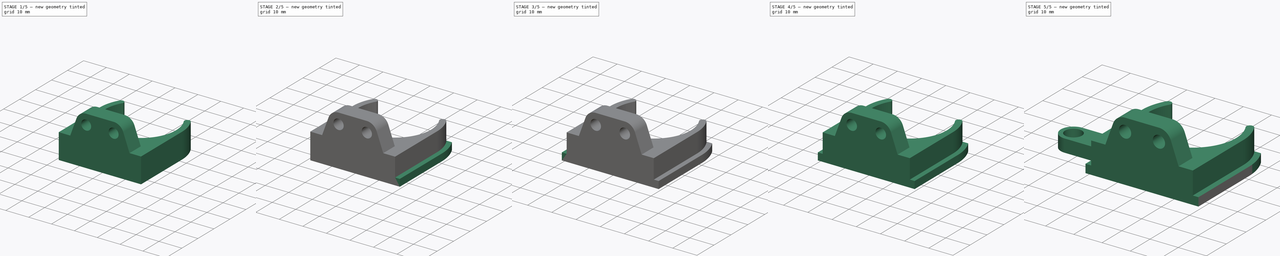
[diagram: build sequence overview — one tinted view per stage of 5, left to right]
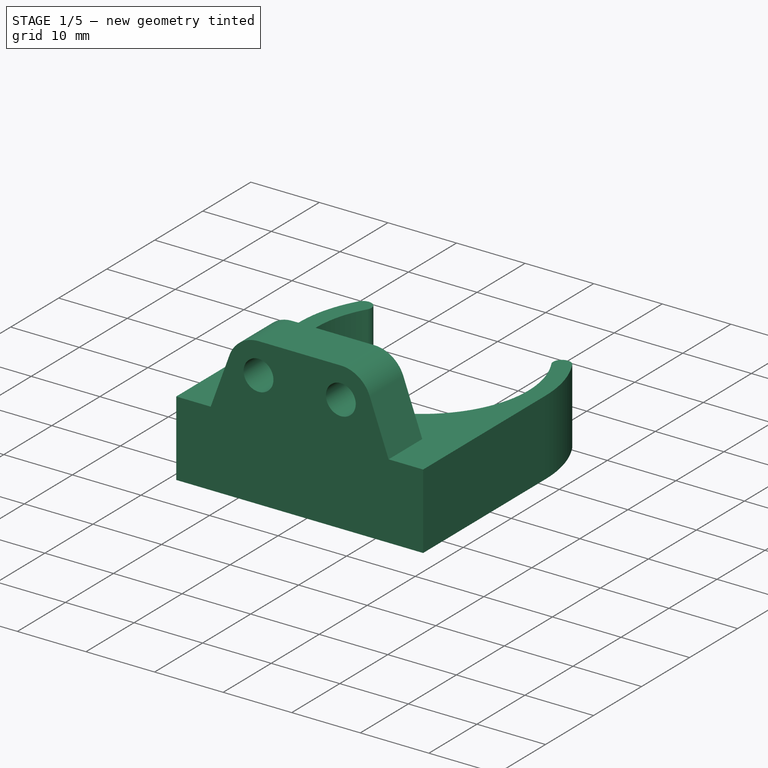
[diagram: stage 1 of 5 — iso view after this stage's code; geometry added in this stage tinted green]
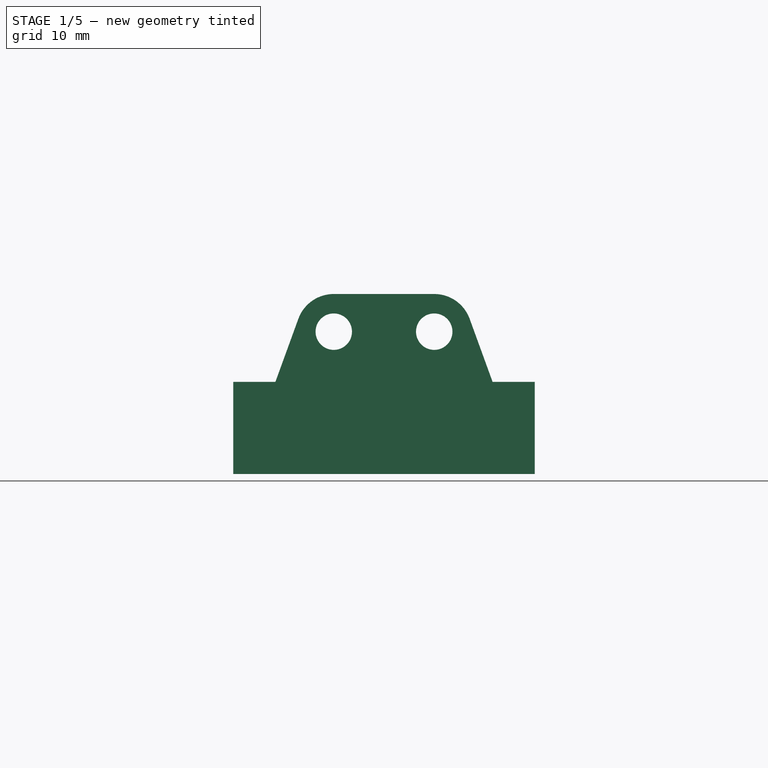
[diagram: stage 1 of 5 — front view after this stage's code; geometry added in this stage tinted green]
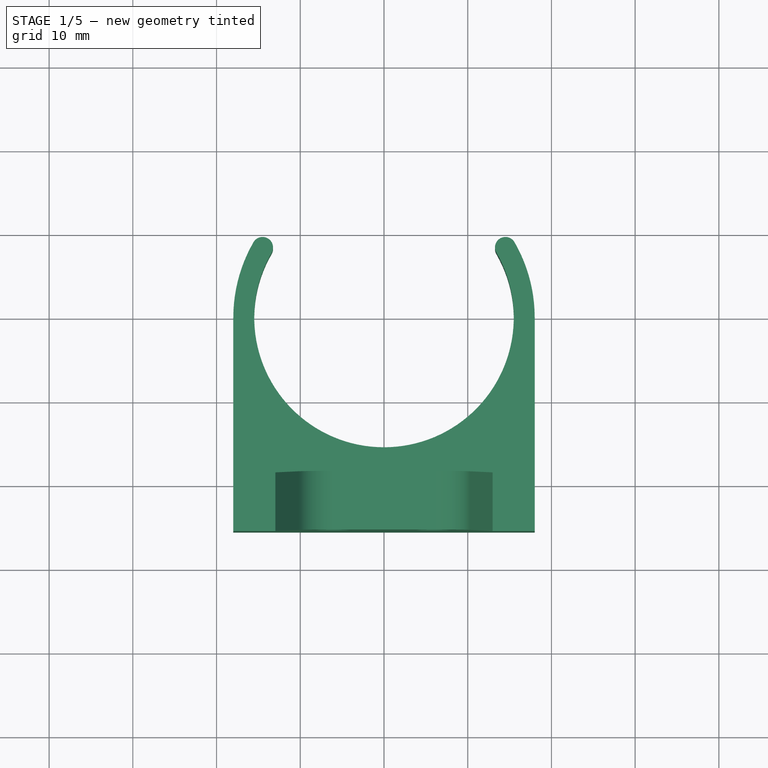
[diagram: stage 1 of 5 — top view after this stage's code; geometry added in this stage tinted green]
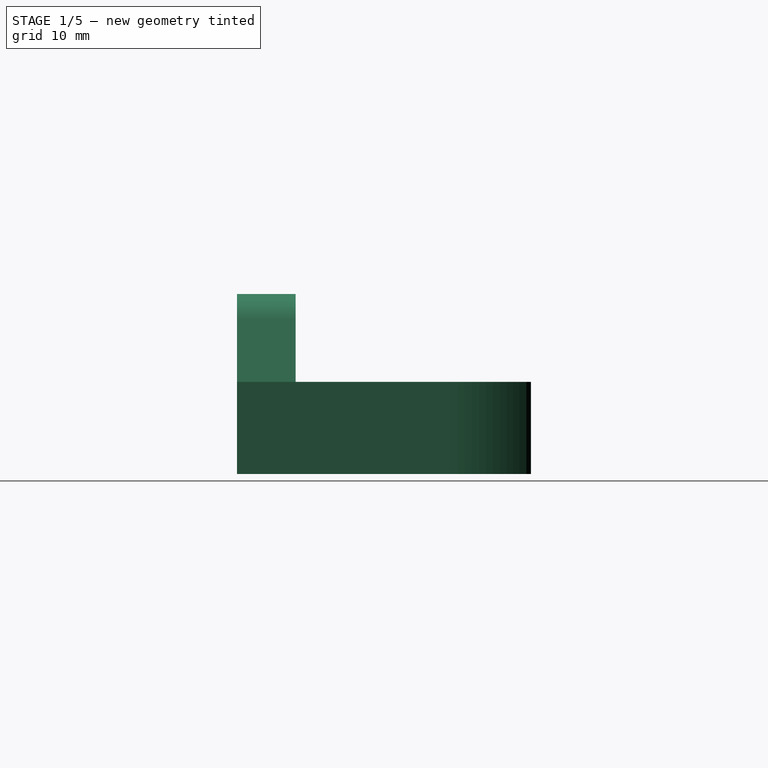
[diagram: stage 1 of 5 — right view after this stage's code; geometry added in this stage tinted green]
FCSTD DOCUMENT  (FreeCAD 1.1R42863 (Git))
Label: PassiveClaw
License: All rights reserved
LicenseURL: https://en.wikipedia.org/wiki/All_rights_reserved
objects: Sketcher::SketchObject×10, PartDesign::Pad×10, PartDesign::Mirrored×3, Measure::MeasureDistanceDetached×2, App::Point×1, PartDesign::Pocket×1, App::DocumentObjectGroup×1, PartDesign::Body×1, Part::Mirroring×1
note: 61 computed .brp shape members not serialized (recipe doc carries the construction recipe); baked Part::Feature solids carry a one-line shape summary decoded from their .brp
EXTERNAL_REF file=../Variables.FCStd obj=Spreadsheet

FEATURE [App::Point] Origin001
  Role = Origin
FEATURE [Sketcher::SketchObject] Sketch
  ArcFitTolerance = 1e-06
  AttachmentSupport = -> [XY_Plane]
  ExternalTypes = [0]
  FullyConstrained = true
  MakeInternals = false
  MapMode = 5
  sketch-geometry (10):
    g0: ArcOfCircle CenterX=14.5059 CenterY=8.375 CenterZ=0 NormalX=0 NormalY=0 NormalZ=1 AngleXU=0 Radius=1.25 StartAngle=0.523599 EndAngle=3.66519
    g1: ArcOfCircle CenterX=-14.5059 CenterY=8.375 CenterZ=0 NormalX=0 NormalY=0 NormalZ=1 AngleXU=0 Radius=1.25 StartAngle=5.75959 EndAngle=8.90118
    g2: ArcOfCircle CenterX=-3.66e-14 CenterY=1.31e-13 CenterZ=0 NormalX=0 NormalY=0 NormalZ=1 AngleXU=0 Radius=15.5 StartAngle=2.61799 EndAngle=6.80678
    g3: LineSegment [constr] StartX=-3.66e-14 StartY=1.31e-13 StartZ=0 EndX=14.5059 EndY=8.375 EndZ=0
    g4: LineSegment StartX=18 StartY=-4.48e-14 StartZ=0 EndX=18 EndY=-25.5 EndZ=0
    g5: LineSegment StartX=18 StartY=-25.5 StartZ=0 EndX=-18 EndY=-25.5 EndZ=0
    g6: LineSegment StartX=-18 StartY=-25.5 StartZ=0 EndX=-18 EndY=-3.6e-15 EndZ=0
    g7: ArcOfCircle CenterX=-3.66e-14 CenterY=1.31e-13 CenterZ=0 NormalX=0 NormalY=0 NormalZ=1 AngleXU=0 Radius=18 StartAngle=-9.8e-15 EndAngle=0.523599
    g8: ArcOfCircle CenterX=-3.66e-14 CenterY=1.31e-13 CenterZ=0 NormalX=0 NormalY=0 NormalZ=1 AngleXU=0 Radius=18 StartAngle=2.61799 EndAngle=3.14159
    g9: GeomPoint X=18.5 Y=0 Z=0
  constraints (27):
    c: Horizontal(g7,g1)
    c: Tangent(g0,g7) = -1.5708
    c: Radius(g0) = 1.25
    c: Coincident(g3,g0)
    c: Angle(g-1,g3) = 0.523599
    c: PointOnObject(g4,g-1)
    c: Coincident(g5,g4)
    c: Horizontal(g5)
    c: Coincident(g6,g5)
    c: Vertical(g6)
    c: PointOnObject(g6,g-1)
    c: Tangent(g4,g7) = 1.5708
    c: Coincident(g8,g6)
    c: Equal(g1,g0)
    c: Tangent(g8,g1) = -1.5708
    c: Coincident(g2,g-1)
    c: Coincident(g8,g7)
    c: Coincident(g3,g2)
    c: Coincident(g7,g2)
    c: Radius(g2) = 15.5
    c: Tangent(g2,g1) = 1.5708
    c: Tangent(g2,g0) = 1.5708
    c: Distance(g2,g5) = 10
    c: PointOnObject(g9,g-1)
    c: Distance(g9,g2) = 3
    c: DistanceX(g-1,g9) = 18.5  'magnetPocketDist'
    c: Distance(g4,g9) = 0.5  'magnetHolderPadDist'
FEATURE [PartDesign::Pad] Pad
  Direction = (0,0,1)
  Length = 11
  Length2 = 10
  Profile = -> Sketch
  ReferenceAxis = -> Sketch [N_Axis]
  Refine = true
  Suppressed = false
  Type = 0
  expr: Length = Variables#Spreadsheet.ClawHeight
FEATURE [Sketcher::SketchObject] Sketch001
  ArcFitTolerance = 1e-06
  AttachmentSupport = -> [Pad]
  ExternalGeometry = -> [Pad]
  ExternalTypes = [0]
  FullyConstrained = true
  MakeInternals = false
  MapMode = 5
  Placement = pos=(0,-25.5,0) rot=(1,0,0;1.5708rad)
  expr: Constraints[0] = Variables#Spreadsheet.PassiveClawMountY
  expr: Constraints[5] = Variables#Spreadsheet.PassiveClawMountX
  expr: Constraints[7] = Variables#Spreadsheet.M4ThroughBoreDiam
  sketch-geometry (10):
    g0: LineSegment [constr] StartX=-8.5286e-12 StartY=11 StartZ=0 EndX=0 EndY=17 EndZ=0
    g1: LineSegment [constr] StartX=-6 StartY=17 StartZ=0 EndX=6 EndY=17 EndZ=0
    g2: Circle CenterX=-6 CenterY=17 CenterZ=0 NormalX=0 NormalY=0 NormalZ=1 AngleXU=0 Radius=2.175
    g3: Circle CenterX=6 CenterY=17 CenterZ=0 NormalX=0 NormalY=0 NormalZ=1 AngleXU=0 Radius=2.175
    g4: ArcOfCircle CenterX=-6 CenterY=17 CenterZ=0 NormalX=0 NormalY=0 NormalZ=1 AngleXU=0 Radius=4.5 StartAngle=1.5708 EndAngle=2.79253
    g5: ArcOfCircle CenterX=6 CenterY=17 CenterZ=0 NormalX=0 NormalY=0 NormalZ=1 AngleXU=0 Radius=4.5 StartAngle=0.349066 EndAngle=1.5708
    g6: LineSegment StartX=-6 StartY=21.5 StartZ=0 EndX=6 EndY=21.5 EndZ=0
    g7: LineSegment StartX=-10.2286 StartY=18.5391 StartZ=0 EndX=-12.9726 EndY=11 EndZ=0
    g8: LineSegment StartX=10.2286 StartY=18.5391 StartZ=0 EndX=12.9726 EndY=11 EndZ=0
    g9: LineSegment StartX=12.9726 StartY=11 StartZ=0 EndX=-12.9726 EndY=11 EndZ=0
  constraints (24):
    c: Distance(g0) = 6
    c: Symmetric(g-3,g-3,g0)
    c: PointOnObject(g0,g-2)
    c: Horizontal(g1)
    c: Symmetric(g1,g1,g0)
    c: DistanceX(g1,g1) = 12
    c: Coincident(g2,g1)
    c: Diameter(g2) = 4.35
    c: Coincident(g3,g1)
    c: Equal(g3,g2)
    c: Coincident(g4,g1)
    c: Coincident(g5,g1)
    c: PointOnObject(g7,g-3)
    c: PointOnObject(g8,g-3)
    c: Coincident(g9,g8)
    c: Coincident(g9,g7)
    c: Equal(g8,g7)
    c: Angle(g7,g-3) = 1.91986
    c: Diameter(g4) = 9
    c: Tangent(g7,g4) = -1.5708
    c: Tangent(g6,g4) = 1.5708
    c: Tangent(g6,g5) = 1.5708
    c: Equal(g5,g4)
    c: Tangent(g8,g5) = 1.5708
FEATURE [PartDesign::Pad] Pad001
  BaseFeature = -> Pad
  Direction = (0,-1,2e-16)
  Length = 7
  Length2 = 10
  Profile = -> Sketch001
  ReferenceAxis = -> Sketch001 [N_Axis]
  Refine = true
  Reversed = true
  Suppressed = false
  Type = 0
FEATURE [Sketcher::SketchObject] Sketch002
  ArcFitTolerance = 1e-06
  AttachmentSupport = -> [Pad001]
  ExternalGeometry = -> [Pad001]
  ExternalTypes = [0]
  FullyConstrained = true
  MakeInternals = false
  MapMode = 5
  Placement = pos=(0,0,0) rot=(1,0,0;3.14159rad)
  sketch-geometry (5):
    g0: LineSegment StartX=-15.4418 StartY=1.34181 StartZ=0 EndX=-15.1 EndY=1 EndZ=0
    g1: LineSegment StartX=-15.1 StartY=1 StartZ=0 EndX=-15.1 EndY=-1 EndZ=0
    g2: LineSegment StartX=-15.1 StartY=-1 StartZ=0 EndX=-15.4418 EndY=-1.34181 EndZ=0
    g3: GeomPoint X=-15.1 Y=1.99e-14 Z=0
    g4: ArcOfCircle CenterX=4.491e-13 CenterY=-1.11643e-11 CenterZ=0 NormalX=0 NormalY=0 NormalZ=1 AngleXU=0 Radius=15.5 StartAngle=3.05492 EndAngle=3.22827
  constraints (14):
    c: PointOnObject(g0,g-3)
    c: Coincident(g1,g0)
    c: Vertical(g1)
    c: Coincident(g2,g1)
    c: PointOnObject(g2,g-3)
    c: Angle(g2,g-2) = 0.785398
    c: Equal(g0,g2)
    c: Symmetric(g1,g1,g3)
    c: PointOnObject(g3,g-1)
    c: Distance(g-3,g1) = -0.4
    c: DistanceY(g1,g1) = 2
    c: Coincident(g4,g0)
    c: Coincident(g4,g2)
    c: Equal(g4,g-3)
FEATURE [PartDesign::Pad] Pad002
  BaseFeature = -> Pad001
  Direction = (0,0,-1)
  Length = 2
  Length2 = 10
  Profile = -> Sketch002
  ReferenceAxis = -> Sketch002 [N_Axis]
  Refine = true
  Reversed = true
  Suppressed = true
  Type = 0
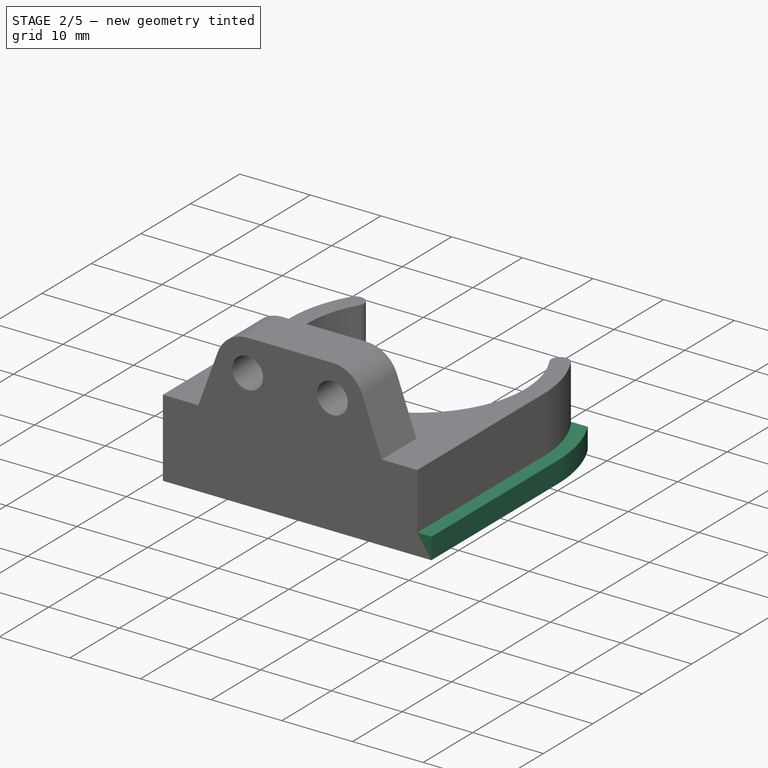
[diagram: stage 2 of 5 — iso view after this stage's code; geometry added in this stage tinted green]
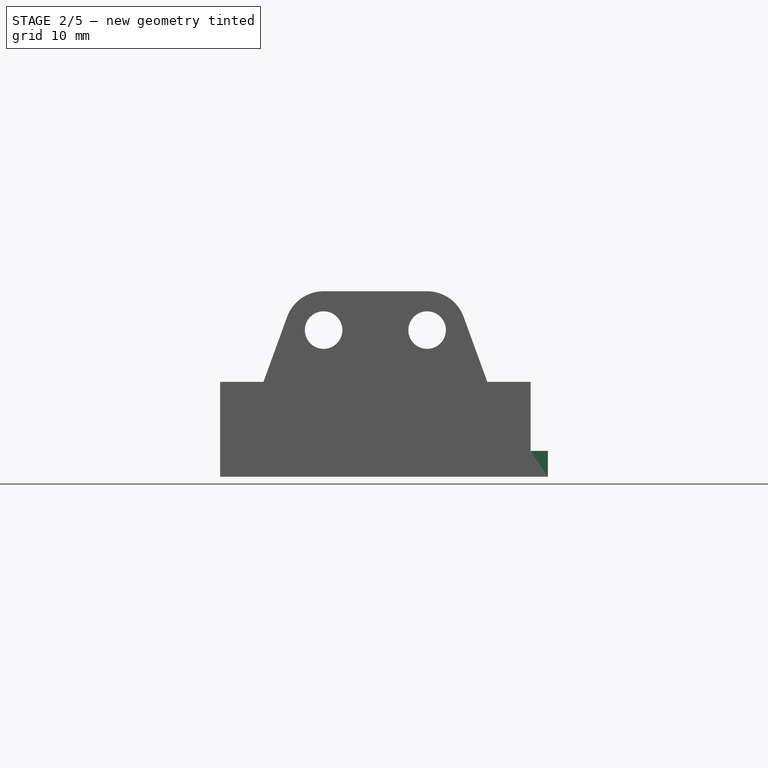
[diagram: stage 2 of 5 — front view after this stage's code; geometry added in this stage tinted green]
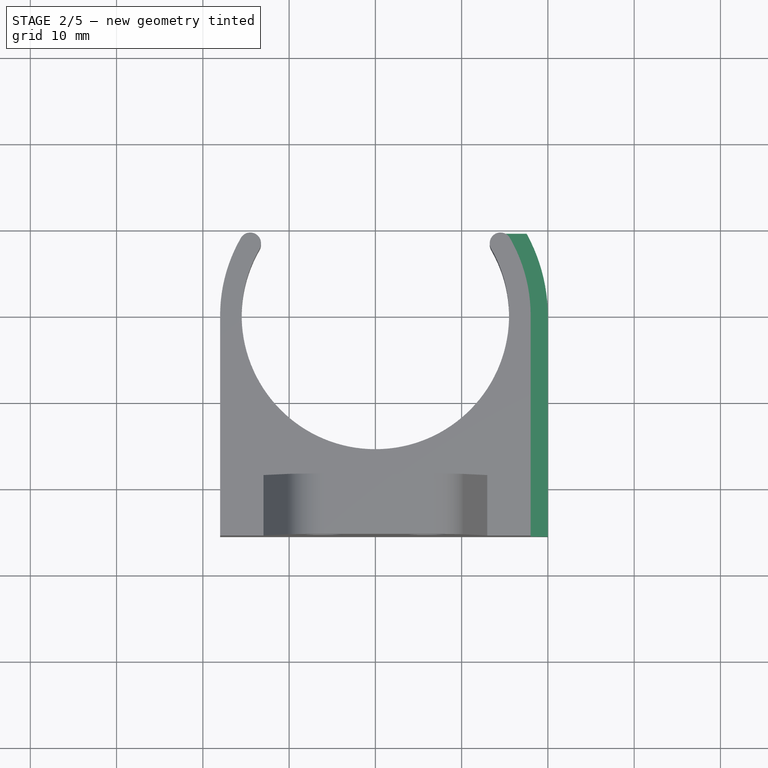
[diagram: stage 2 of 5 — top view after this stage's code; geometry added in this stage tinted green]
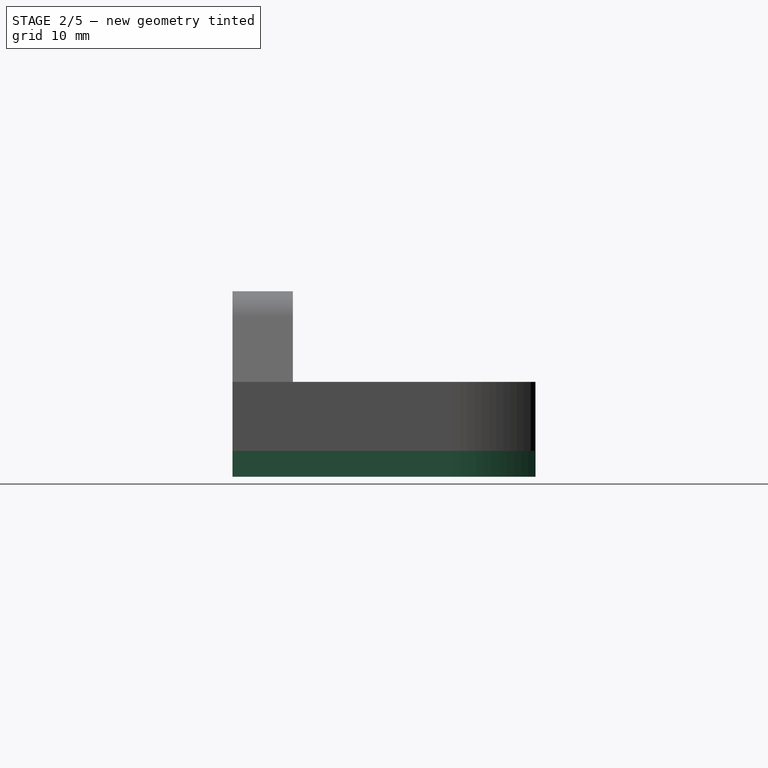
[diagram: stage 2 of 5 — right view after this stage's code; geometry added in this stage tinted green]
FEATURE [PartDesign::Mirrored] Mirrored
  BaseFeature = -> Pad002
  MirrorPlane = -> Sketch002 [V_Axis]
  Originals = -> [Pad002]
  Refine = true
  Suppressed = true
  TransformMode = 0
FEATURE [Sketcher::SketchObject] Sketch003
  ArcFitTolerance = 1e-06
  AttachmentSupport = -> [Mirrored]
  ExternalGeometry = -> [Mirrored]
  ExternalTypes = [0,0,0]
  FullyConstrained = true
  MakeInternals = false
  MapMode = 5
  Placement = pos=(0,0,11) rot=(0,0,1;0rad)
  sketch-geometry (5):
    g0: ArcOfCircle CenterX=0 CenterY=0 CenterZ=0 NormalX=0 NormalY=0 NormalZ=1 AngleXU=0 Radius=14 StartAngle=3.04442 EndAngle=6.38035
    g1: LineSegment StartX=13.934 StartY=1.35821 StartZ=0 EndX=13.2618 EndY=8.25373 EndZ=0
    g2: LineSegment StartX=-13.934 StartY=1.35821 StartZ=0 EndX=-13.2618 EndY=8.25373 EndZ=0
    g3: ArcOfCircle CenterX=-14.5059 CenterY=8.375 CenterZ=0 NormalX=0 NormalY=0 NormalZ=1 AngleXU=0 Radius=1.25 StartAngle=5.75959 EndAngle=6.18602
    g4: ArcOfCircle CenterX=14.5059 CenterY=8.375 CenterZ=0 NormalX=0 NormalY=0 NormalZ=1 AngleXU=0 Radius=1.25 StartAngle=3.23876 EndAngle=3.66519
  constraints (12):
    c: Coincident(g-1,g0)
    c: Tangent(g1,g-5) = 1.5708
    c: Tangent(g2,g-4) = -1.5708
    c: Tangent(g2,g0) = 1.5708
    c: Tangent(g1,g0) = -1.5708
    c: Distance(g0,g-3) = 1.5
    c: Coincident(g3,g-4)
    c: Coincident(g3,g2)
    c: Equal(g3,g-4)
    c: Coincident(g4,g1)
    c: Coincident(g4,g-5)
    c: Equal(g4,g-5)
FEATURE [PartDesign::Pad] Pad003
  BaseFeature = -> Mirrored
  Direction = (0,0,1)
  Length = 1.5
  Length2 = 10
  Profile = -> Sketch003
  ReferenceAxis = -> Sketch003 [N_Axis]
  Refine = true
  Reversed = true
  Suppressed = true
  Type = 0
FEATURE [Sketcher::SketchObject] Sketch004
  ArcFitTolerance = 1e-06
  AttachmentSupport = -> [YZ_Plane]
  ExternalTypes = [0]
  FullyConstrained = true
  MakeInternals = false
  MapMode = 5
  Placement = pos=(0,0,0) rot=(0.57735,0.57735,0.57735;2.0944rad)
  expr: .AttachmentOffset.Base.z = 0
  sketch-geometry (1):
    g0: Circle CenterX=0 CenterY=3.28 CenterZ=0 NormalX=0 NormalY=0 NormalZ=1 AngleXU=0 Radius=3
  constraints (3):
    c: Diameter(g0) = 6
    c: PointOnObject(g0,g-2)
    c: Distance(g0,g-1) = 0.28
FEATURE [Sketcher::SketchObject] Sketch008
  ArcFitTolerance = 1e-06
  ExternalGeometry = -> [Sketch]
  ExternalTypes = [0]
  FullyConstrained = true
  MakeInternals = false
  MapMode = 5
  Placement = pos=(0,0,0) rot=(1,0,0;3.14159rad)
  sketch-geometry (5):
    g0: LineSegment StartX=18 StartY=17.5 StartZ=0 EndX=18 EndY=8.5 EndZ=0
    g1: GeomPoint X=18 Y=13 Z=0
    g2: LineSegment StartX=18 StartY=8.5 StartZ=0 EndX=33 EndY=8.5 EndZ=0
    g3: LineSegment StartX=18 StartY=17.5 StartZ=0 EndX=33 EndY=17.5 EndZ=0
    g4: ArcOfCircle CenterX=33 CenterY=13 CenterZ=0 NormalX=0 NormalY=0 NormalZ=1 AngleXU=0 Radius=4.5 StartAngle=4.71239 EndAngle=7.85398
  constraints (14):
    c: Distance(g0) = 9
    c: PointOnObject(g0,g-3)
    c: PointOnObject(g0,g-3)
    c: Symmetric(g0,g0,g1)
    c: DistanceY(g-1,g1) = 13
    c: Coincident(g2,g0)
    c: Horizontal(g2)
    c: Coincident(g3,g0)
    c: Horizontal(g3)
    c: Vertical(g3,g2)
    c: Coincident(g4,g3)
    c: Coincident(g4,g2)
    c: Vertical(g2,g4)
    c: DistanceX(g1,g4) = 15
FEATURE [Sketcher::SketchObject] Sketch010
  ArcFitTolerance = 1e-06
  AttachmentSupport = -> [Pad003]
  ExternalGeometry = -> [Pad003]
  ExternalTypes = [0,0,0]
  FullyConstrained = true
  MakeInternals = false
  MapMode = 5
  Placement = pos=(0,0,0) rot=(1,0,0;3.14159rad)
  sketch-geometry (5):
    g0: LineSegment StartX=14.5059 StartY=-9.625 StartZ=0 EndX=17.5317 EndY=-9.625 EndZ=0
    g1: ArcOfCircle CenterX=-4.7e-15 CenterY=-1.14e-14 CenterZ=0 NormalX=0 NormalY=0 NormalZ=1 AngleXU=0 Radius=20 StartAngle=5.78111 EndAngle=6.28319
    g2: LineSegment StartX=20 StartY=1.5e-15 StartZ=0 EndX=20 EndY=25.5 EndZ=0
    g3: LineSegment StartX=20 StartY=25.5 StartZ=0 EndX=18 EndY=25.5 EndZ=0
    g4: ArcOfCircle CenterX=14.5059 CenterY=-8.375 CenterZ=0 NormalX=0 NormalY=0 NormalZ=1 AngleXU=0 Radius=1.25 StartAngle=4.71239 EndAngle=5.75959
  constraints (13):
    c: Horizontal(g0)
    c: Tangent(g0,g-5) = -1.5708
    c: Coincident(g1,g0)
    c: PointOnObject(g1,g-1)
    c: Coincident(g1,g-1)
    c: Coincident(g2,g1)
    c: Vertical(g2)
    c: Coincident(g3,g2)
    c: Coincident(g3,g-3)
    c: Horizontal(g3)
    c: DistanceX(g3,g3) = 2
    c: Coincident(g4,g0)
    c: Tangent(g4,g-5) = -1.5708
FEATURE [PartDesign::Pad] Pad009
  BaseFeature = -> Pad003
  Direction = (0,0,-1)
  Length = 3
  Length2 = 10
  Profile = -> Sketch010
  ReferenceAxis = -> Sketch010 [N_Axis]
  Refine = true
  Reversed = true
  Suppressed = false
  Type = 0
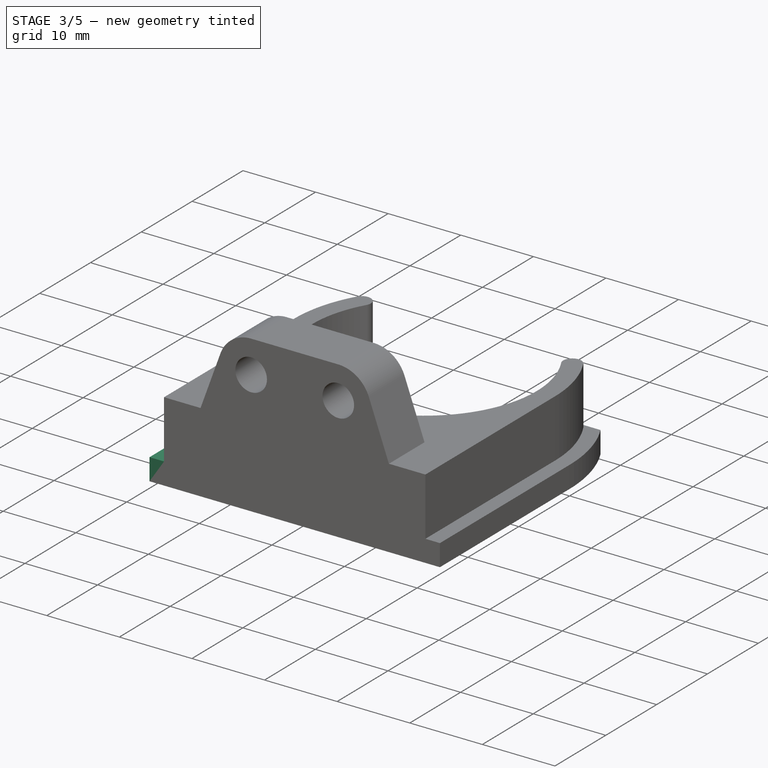
[diagram: stage 3 of 5 — iso view after this stage's code; geometry added in this stage tinted green]
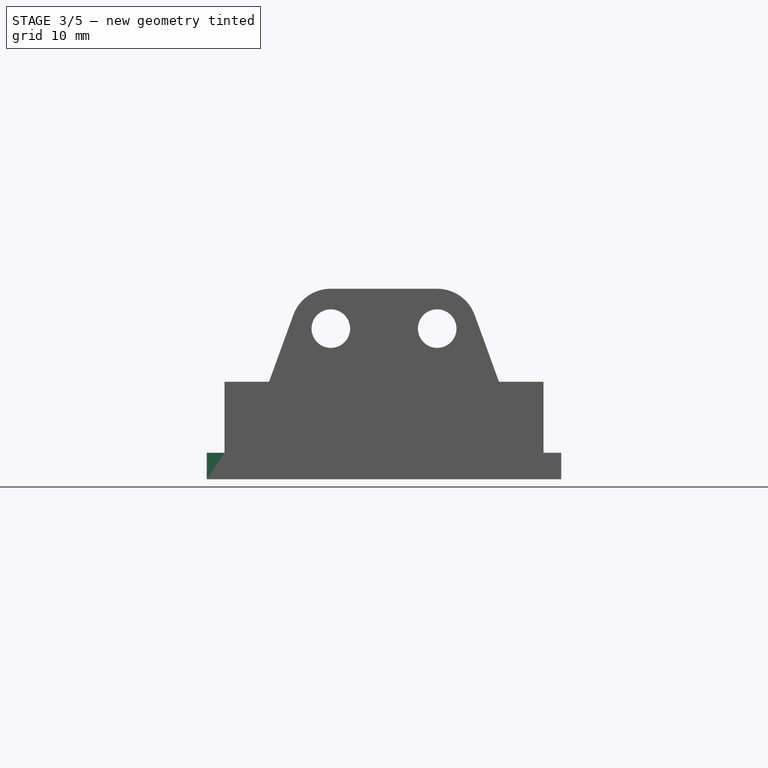
[diagram: stage 3 of 5 — front view after this stage's code; geometry added in this stage tinted green]
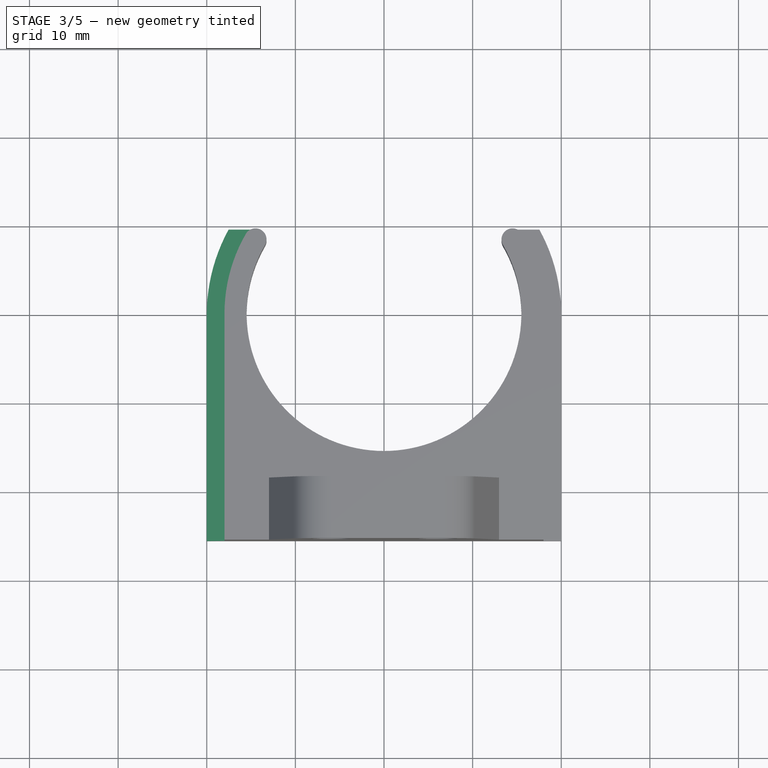
[diagram: stage 3 of 5 — top view after this stage's code; geometry added in this stage tinted green]
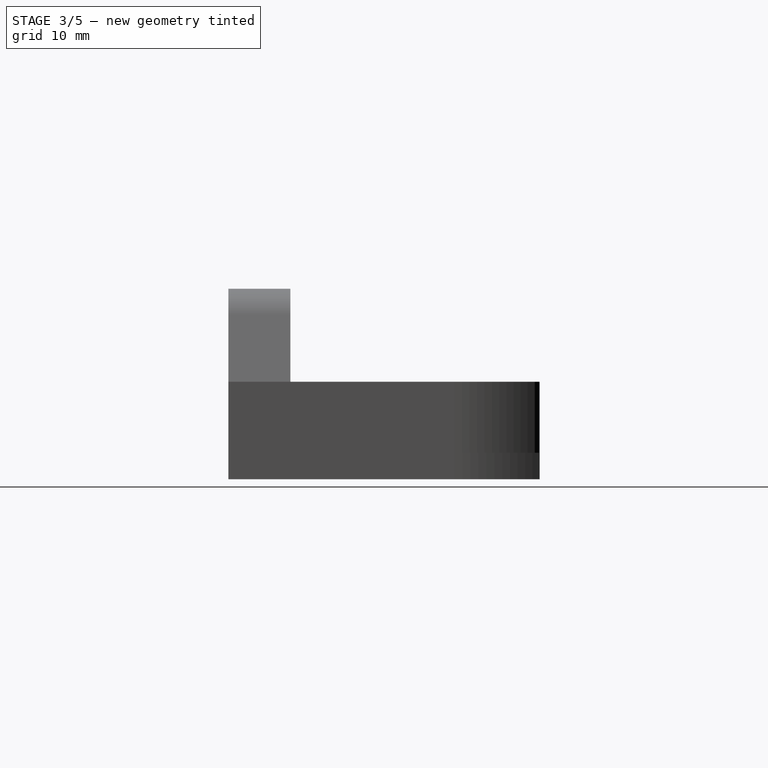
[diagram: stage 3 of 5 — right view after this stage's code; geometry added in this stage tinted green]
FEATURE [PartDesign::Mirrored] Mirrored002
  BaseFeature = -> Pad009
  MirrorPlane = -> Sketch010 [V_Axis]
  Originals = -> [Pad009]
  Refine = true
  Suppressed = false
  TransformMode = 0
FEATURE [PartDesign::Pocket] Pocket
  BaseFeature = -> Mirrored002
  Direction = (-1,0,0)
  Length = 18.5
  Length2 = 5
  Profile = -> Sketch004
  ReferenceAxis = -> Sketch004 [N_Axis]
  Refine = true
  Reversed = true
  Suppressed = true
  Type = 0
  expr: Length = Sketch.Constraints.magnetPocketDist
FEATURE [Sketcher::SketchObject] Sketch005
  ArcFitTolerance = 1e-06
  AttachmentSupport = -> [Pocket]
  ExternalTypes = [0,0,0]
  FullyConstrained = true
  MakeInternals = false
  MapMode = 5
  Placement = pos=(18,-1.6569e-11,0) rot=(0.57735,0.57735,0.57735;2.0944rad)
  sketch-geometry (5):
    g0: LineSegment StartX=-4 StartY=0 StartZ=0 EndX=4 EndY=0 EndZ=0
    g1: LineSegment StartX=4 StartY=0 StartZ=0 EndX=4 EndY=7 EndZ=0
    g2: LineSegment StartX=4 StartY=7 StartZ=0 EndX=-4 EndY=7 EndZ=0
    g3: LineSegment StartX=-4 StartY=7 StartZ=0 EndX=-4 EndY=0 EndZ=0
    g4: GeomPoint X=0 Y=7 Z=0
  constraints (13):
    c: Coincident(g0,g1)
    c: Coincident(g1,g2)
    c: Coincident(g2,g3)
    c: Coincident(g3,g0)
    c: Horizontal(g0)
    c: Horizontal(g2)
    c: Vertical(g1)
    c: Vertical(g3)
    c: PointOnObject(g0,g-1)
    c: Symmetric(g2,g2,g4)
    c: PointOnObject(g4,g-2)
    c: DistanceY(g1,g1) = 7
    c: DistanceX(g2,g2) = 8
FEATURE [PartDesign::Pad] Pad004
  BaseFeature = -> Pocket
  Direction = (1,-9.206e-13,0)
  Length = 2
  Length2 = 10
  Profile = -> Sketch005
  ReferenceAxis = -> Sketch005 [N_Axis]
  Refine = true
  Reversed = true
  Suppressed = true
  Type = 0
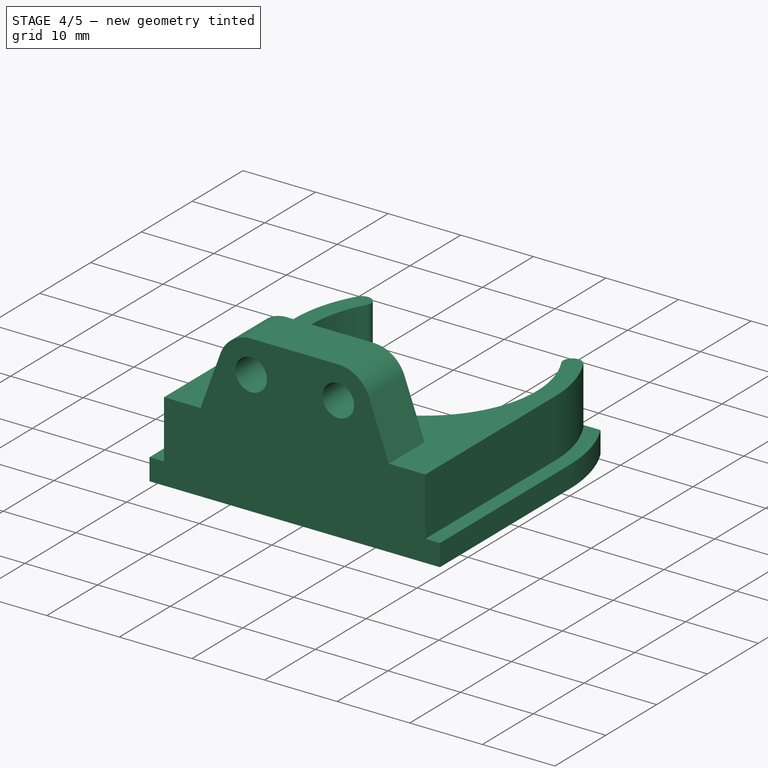
[diagram: stage 4 of 5 — iso view after this stage's code; geometry added in this stage tinted green]
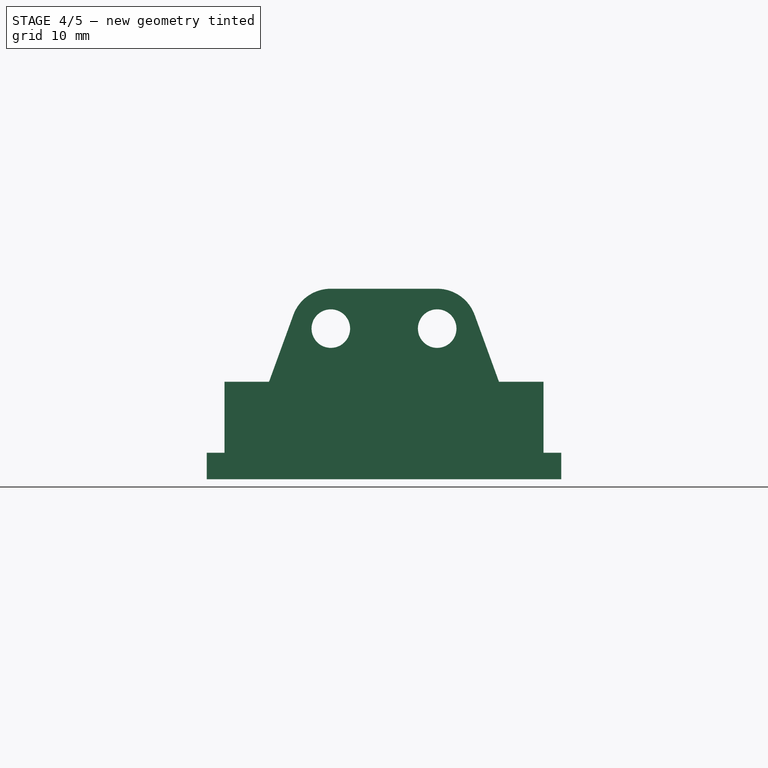
[diagram: stage 4 of 5 — front view after this stage's code; geometry added in this stage tinted green]
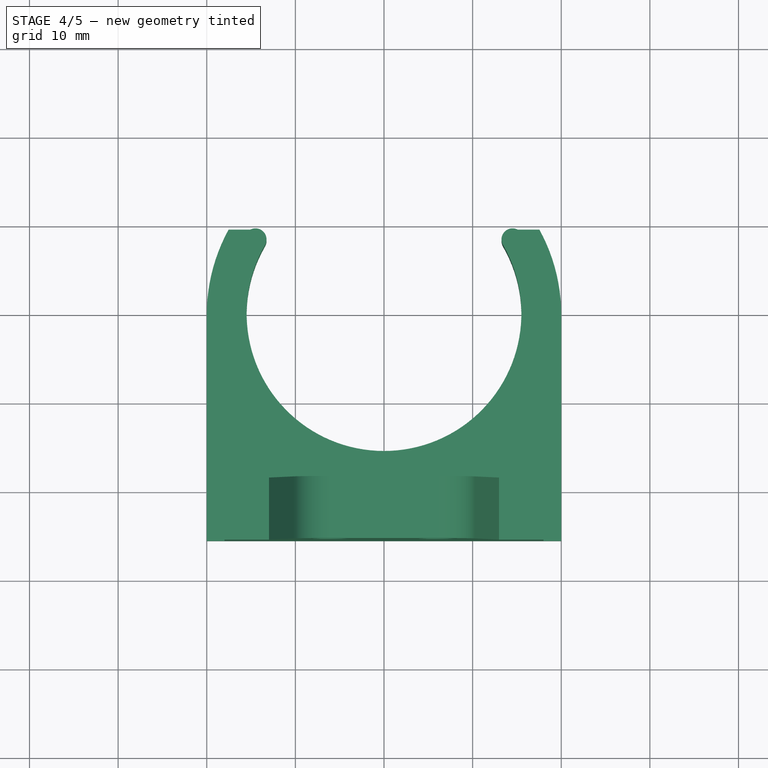
[diagram: stage 4 of 5 — top view after this stage's code; geometry added in this stage tinted green]
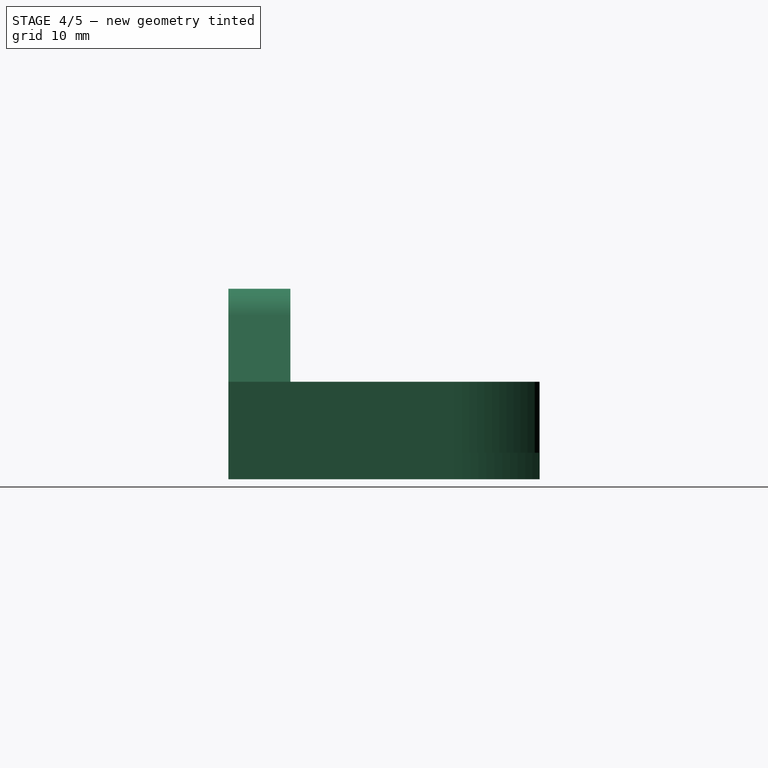
[diagram: stage 4 of 5 — right view after this stage's code; geometry added in this stage tinted green]
FEATURE [PartDesign::Pad] Pad005
  BaseFeature = -> Pad004
  Direction = (1,-9.206e-13,0)
  Length = 0.5
  Length2 = 10
  Profile = -> Sketch005
  ReferenceAxis = -> Sketch005 [N_Axis]
  Refine = true
  Suppressed = true
  Type = 0
  expr: Length = Sketch.Constraints.magnetHolderPadDist
FEATURE [Sketcher::SketchObject] Sketch006
  ArcFitTolerance = 1e-06
  AttachmentSupport = -> [Pad005]
  ExternalTypes = [0,0,0,0]
  FullyConstrained = false
  MakeInternals = false
  Placement = pos=(18.5,-1.57913e-11,7.83e-14) rot=(0.57735,0.57735,0.57735;2.0944rad)
  sketch-geometry (3):
    g0: LineSegment StartX=-4 StartY=3 StartZ=0 EndX=-4 EndY=0 EndZ=0
    g1: LineSegment StartX=-4 StartY=0 StartZ=0 EndX=4 EndY=0 EndZ=0
    g2: LineSegment StartX=4 StartY=3 StartZ=0 EndX=4 EndY=0 EndZ=0
  constraints (7):
    c: Coincident(g0,g-4)
    c: PointOnObject(g0,g-1)
    c: Vertical(g0)
    c: Coincident(g1,g0)
    c: Coincident(g2,g-5)
    c: Coincident(g2,g1)
    c: Vertical(g2)
FEATURE [PartDesign::Pad] Pad006
  BaseFeature = -> Pad005
  Direction = (1,-8.533e-13,3.9e-15)
  Length = 1
  Length2 = 10
  Profile = -> Sketch006
  ReferenceAxis = -> Sketch006 [N_Axis]
  Refine = true
  Suppressed = true
  Type = 0
FEATURE [PartDesign::Mirrored] Mirrored001
  BaseFeature = -> Pad006
  MirrorPlane = -> YZ_Plane
  Originals = -> [Pocket,Pad004,Pad005,Pad006]
  Refine = true
  Suppressed = true
  TransformMode = 0
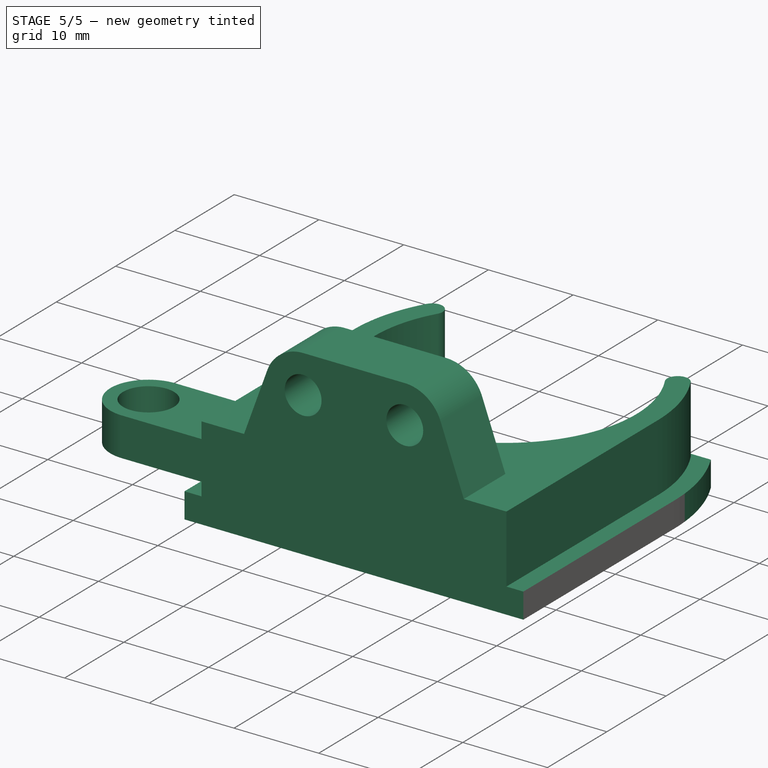
[diagram: stage 5 of 5 — iso view after this stage's code; geometry added in this stage tinted green]
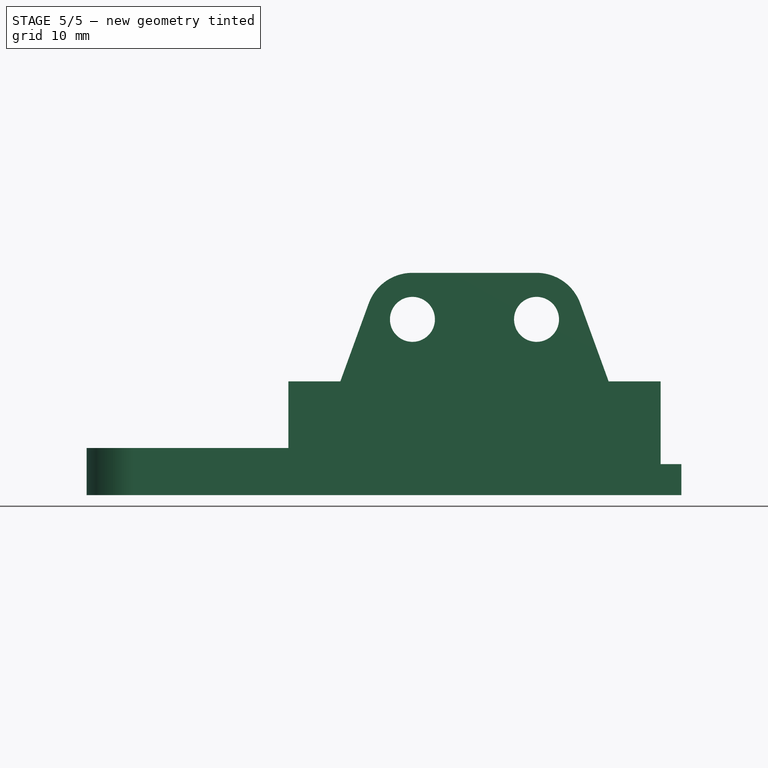
[diagram: stage 5 of 5 — front view after this stage's code; geometry added in this stage tinted green]
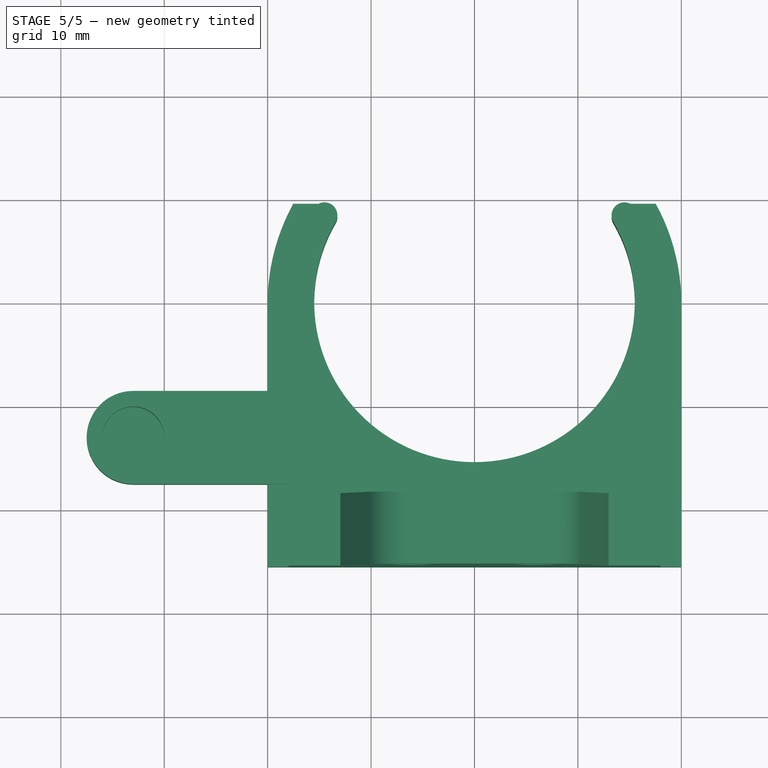
[diagram: stage 5 of 5 — top view after this stage's code; geometry added in this stage tinted green]
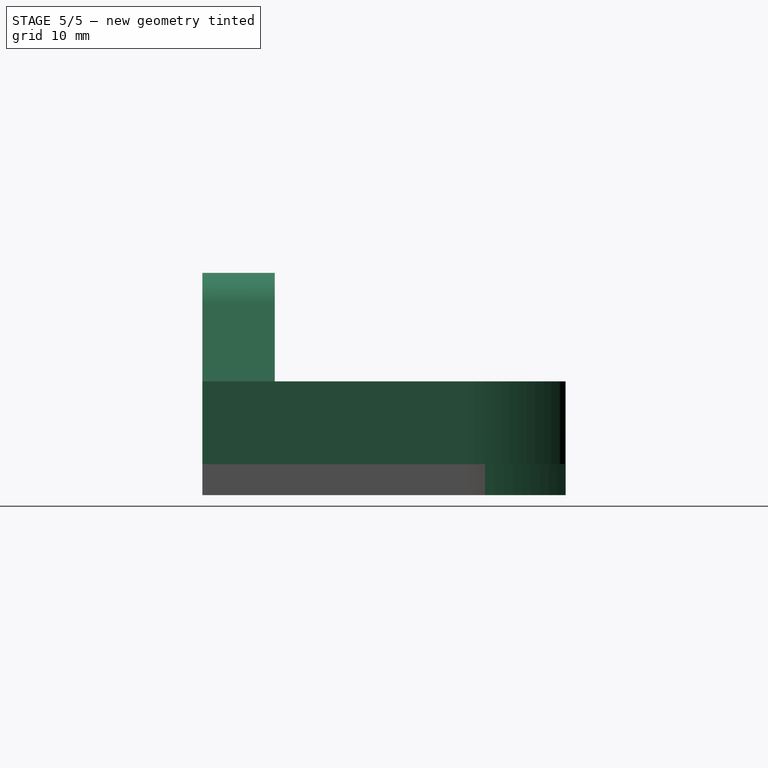
[diagram: stage 5 of 5 — right view after this stage's code; geometry added in this stage tinted green]
FEATURE [PartDesign::Pad] Pad007
  BaseFeature = -> Mirrored001
  Direction = (0,-1e-16,-1)
  Length = 0.56
  Length2 = 10
  Profile = -> Sketch008
  ReferenceAxis = -> Sketch008 [N_Axis]
  Refine = true
  Reversed = true
  Suppressed = false
  Type = 0
FEATURE [Sketcher::SketchObject] Sketch009
  ArcFitTolerance = 1e-06
  AttachmentSupport = -> [Pad007]
  ExternalGeometry = -> [Pad007]
  ExternalTypes = [0,0,0,0]
  FullyConstrained = true
  MakeInternals = false
  MapMode = 5
  Placement = pos=(0,0,0.56) rot=(0,0,1;0rad)
  sketch-geometry (4):
    g0: Circle CenterX=33 CenterY=-13 CenterZ=0 NormalX=0 NormalY=0 NormalZ=1 AngleXU=0 Radius=3
    g1: LineSegment StartX=20 StartY=-8.5 StartZ=0 EndX=18 EndY=-8.5 EndZ=0
    g2: LineSegment StartX=20 StartY=-17.5 StartZ=0 EndX=18 EndY=-17.5 EndZ=0
    g3: LineSegment StartX=18 StartY=-17.5 StartZ=0 EndX=18 EndY=-8.5 EndZ=0
  constraints (10):
    c: Diameter(g0) = 6
    c: Coincident(g0,g-5)
    c: Coincident(g1,g-3)
    c: PointOnObject(g1,g-6)
    c: Coincident(g2,g-4)
    c: PointOnObject(g2,g-6)
    c: Coincident(g3,g2)
    c: Coincident(g3,g1)
    c: Horizontal(g1)
    c: Horizontal(g2)
FEATURE [Measure::MeasureDistanceDetached] Distance_Free  label="Distance_Free: 0.00000 mm"
  Distance = 0
  DistanceX = 0
  DistanceY = 0
  DistanceZ = 0
  Position1 = (0,0,0)
  Position2 = (0,0,0)
FEATURE [Measure::MeasureDistanceDetached] Distance_Free001  label="Distance_Free001: 0.00000 mm"
  Distance = 0
  DistanceX = 0
  DistanceY = 0
  DistanceZ = 0
  Position1 = (0,0,0)
  Position2 = (0,0,0)
FEATURE [App::DocumentObjectGroup] Measurements
  Group = -> [Distance_Free,Distance_Free001]
FEATURE [PartDesign::Pad] Pad008
  BaseFeature = -> Pad007
  Direction = (0,0,1)
  Length = 4
  Length2 = 10
  Profile = -> Sketch009
  ReferenceAxis = -> Sketch009 [N_Axis]
  Refine = true
  Suppressed = false
  Type = 0
FEATURE [PartDesign::Body] Body  label="Passive Claw Right"
  AllowCompound = true
  Group = -> [Sketch,Pad,Sketch001,Pad001,Sketch002,Pad002,Mirrored,Sketch003,Pad003,Sketch004,Sketch010,Pad009,Mirrored002,Pocket,Sketch005,Pad004,Pad005,Sketch006,Pad006,Mirrored001,Sketch008,Pad007,Sketch009,Pad008]
  Origin = -> Origin
  Tip = -> Pad008
FEATURE [Part::Mirroring] Part__Mirroring  label="Passive Claw Left"
  Base = (-20,-1.5e-15,0)
  MirrorPlane = -> Pad008 [Face21]
  Normal = (-1,0,0)
  Source = -> Pad008
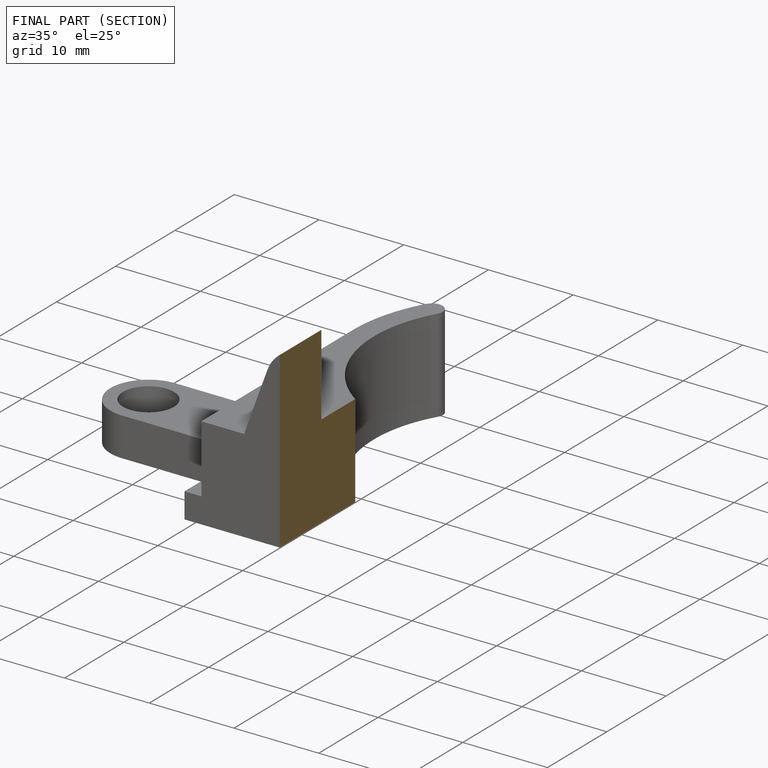
[diagram: finished part — half-section view (interior)]
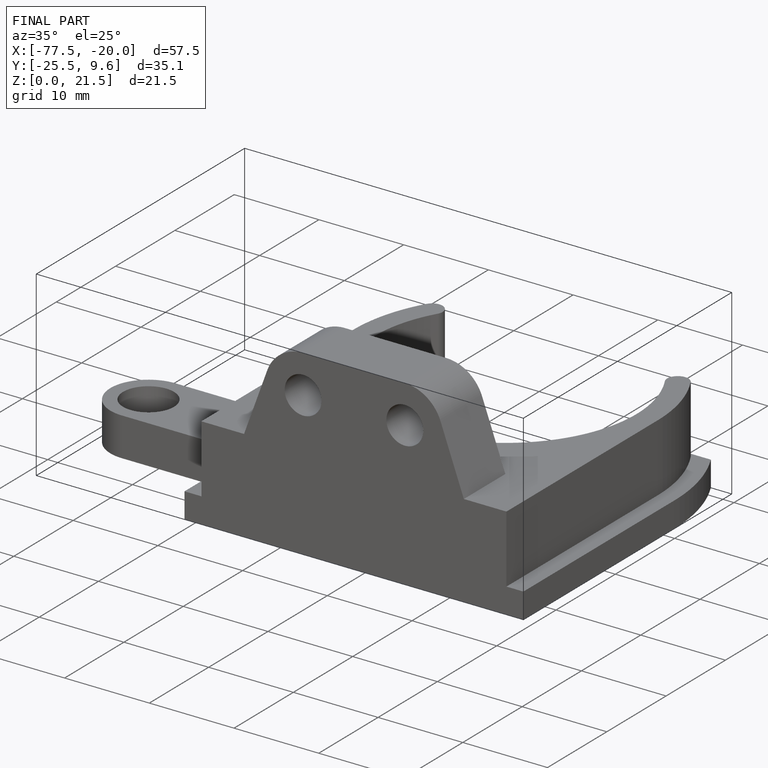
[diagram: finished part — iso view with bounding-box wireframe]
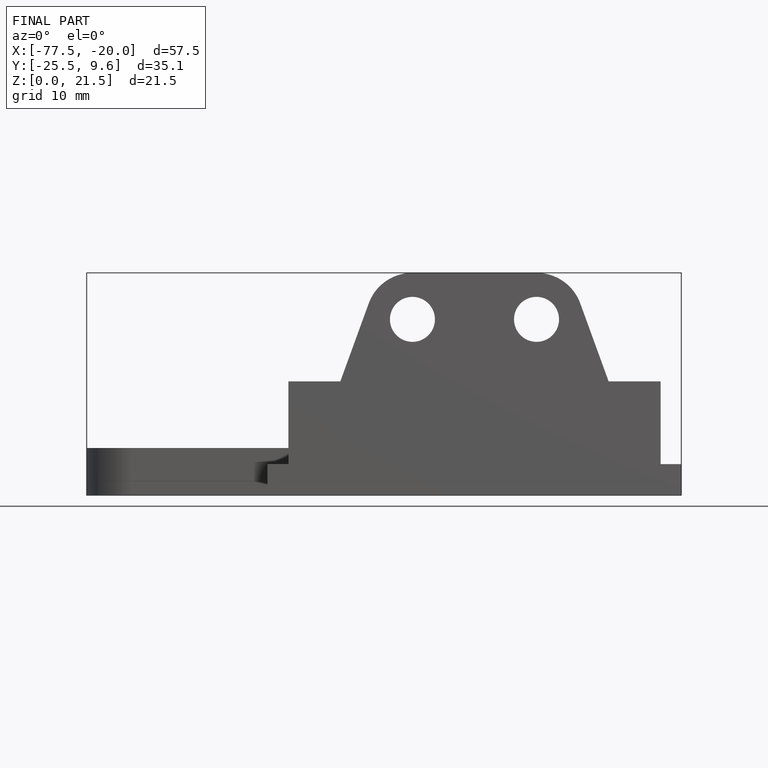
[diagram: finished part — front view with bounding-box wireframe]
